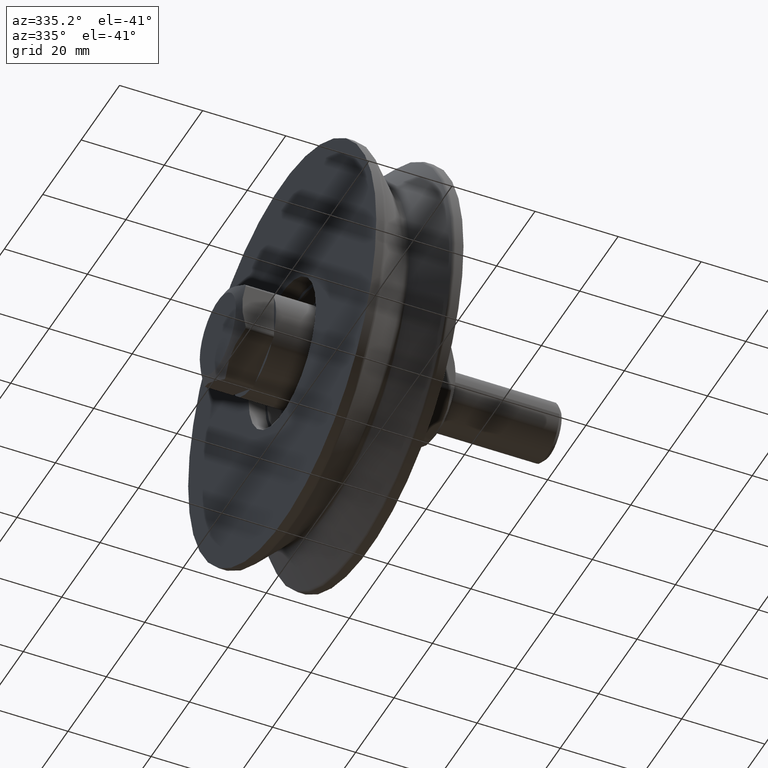
[diagram: clean part render]
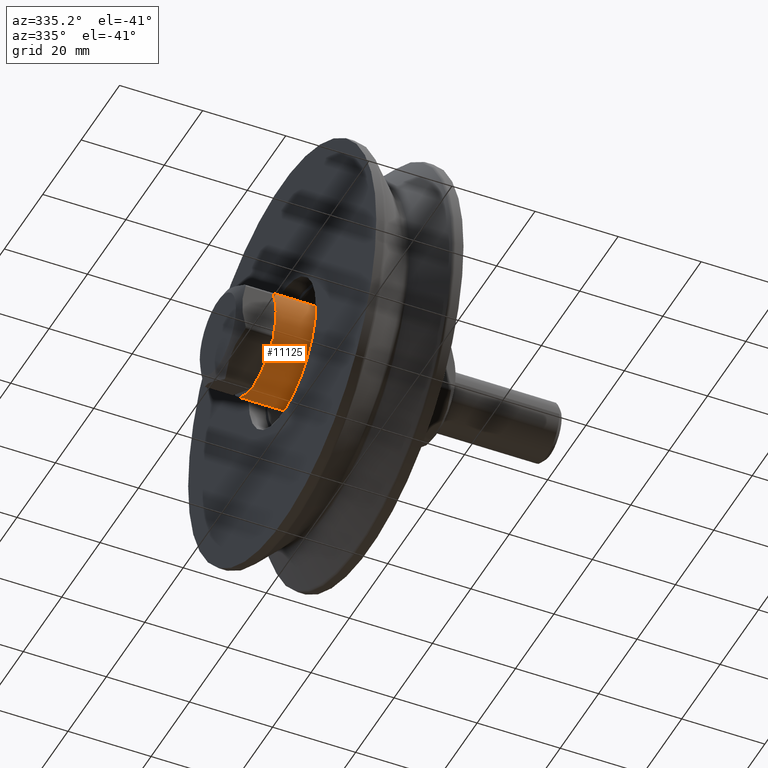
[diagram: same view with one face highlighted and labeled with its STEP entity id]
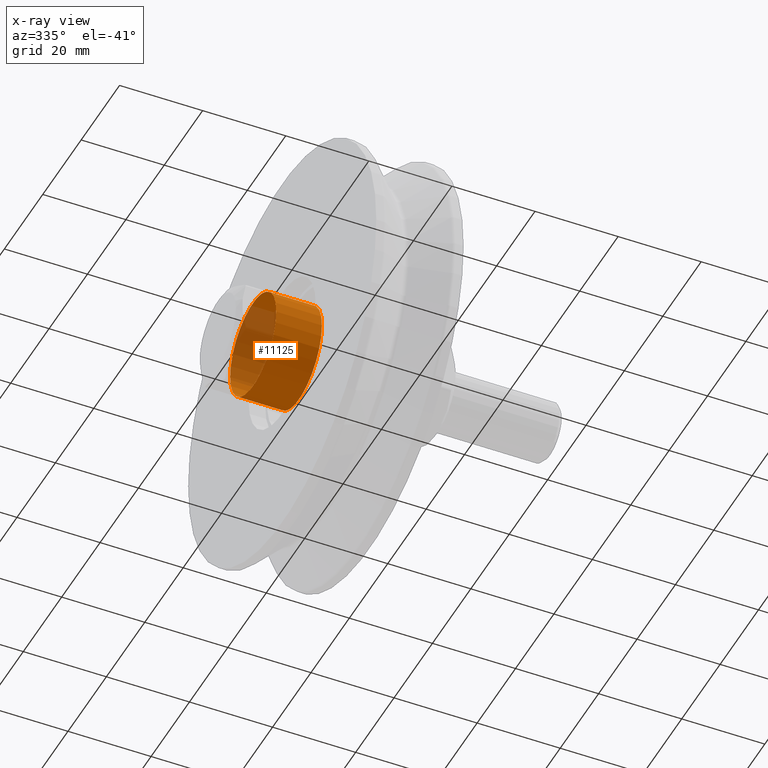
[diagram: x-ray of the same camera — body ghosted, the highlighted face saturated]
A machine part, auxiliary view. The second image highlights one B-rep face of the part: STEP entity #11125.
The next image is the same camera in x-ray: the body ghosted, the highlighted face saturated — about 30% of this face is hidden behind the body in this view.
In plain terms, the highlighted cylindrical surface (bore or boss wall) has radius 12 mm, axis along (-1, 0, 0).
Its self-contained STEP definition (entity closure, byte-faithful):
#40 = FACE_OUTER_BOUND ( 'NONE', #5791, .T. ) ;
#181 = CIRCLE ( 'NONE', #13660, 11.99999999999999822 ) ;
#1109 = ORIENTED_EDGE ( 'NONE', *, *, #13246, .T. ) ;
#1682 = CARTESIAN_POINT ( 'NONE',  ( 0.000000000000000000, 1.410593220986744572E-31, -1.301042606982605124E-15 ) ) ;
#1915 = VERTEX_POINT ( 'NONE', #10951 ) ;
#2662 = DIRECTION ( 'NONE',  ( -0.000000000000000000, 1.084202172485504187E-16, -1.000000000000000000 ) ) ;
#2762 = DIRECTION ( 'NONE',  ( 0.000000000000000000, 1.000000000000000000, 1.445602896647339410E-16 ) ) ;
#3478 = CIRCLE ( 'NONE', #3918, 12.00000000000000000 ) ;
#3918 = AXIS2_PLACEMENT_3D ( 'NONE', #1682, #2662, #7215 ) ;
#4638 = FACE_OUTER_BOUND ( 'NONE', #7384, .T. ) ;
#5427 = ORIENTED_EDGE ( 'NONE', *, *, #7097, .F. ) ;
#5607 = DIRECTION ( 'NONE',  ( 0.000000000000000000, 1.000000000000000000, 1.084202172485504311E-16 ) ) ;
#5791 = EDGE_LOOP ( 'NONE', ( #1109 ) ) ;
#6645 = CARTESIAN_POINT ( 'NONE',  ( 0.000000000000000000, 0.000000000000000000, 0.000000000000000000 ) ) ;
#7097 = EDGE_CURVE ( 'NONE', #9006, #9006, #3478, .T. ) ;
#7215 = DIRECTION ( 'NONE',  ( 0.000000000000000000, 1.000000000000000000, 1.084202172485504311E-16 ) ) ;
#7384 = EDGE_LOOP ( 'NONE', ( #5427 ) ) ;
#9006 = VERTEX_POINT ( 'NONE', #13072 ) ;
#9538 = DIRECTION ( 'NONE',  ( -0.000000000000000000, 1.084202172485504187E-16, -1.000000000000000000 ) ) ;
#10094 = DIRECTION ( 'NONE',  ( -0.000000000000000000, 1.084202172485504187E-16, -1.000000000000000000 ) ) ;
#10622 = AXIS2_PLACEMENT_3D ( 'NONE', #6645, #10094, #5607 ) ;
#10753 = CARTESIAN_POINT ( 'NONE',  ( 0.000000000000000000, -1.192622389734054286E-15, 10.99999999999999822 ) ) ;
#10951 = CARTESIAN_POINT ( 'NONE',  ( 0.000000000000000000, 11.99999999999999645, 11.00000000000000000 ) ) ;
#10973 = CYLINDRICAL_SURFACE ( 'NONE', #10622, 12.00000000000000000 ) ;
#11125 = ADVANCED_FACE ( 'NONE', ( #40, #4638 ), #10973, .T. ) ;
#13072 = CARTESIAN_POINT ( 'NONE',  ( 0.000000000000000000, 12.00000000000000000, 0.000000000000000000 ) ) ;
#13246 = EDGE_CURVE ( 'NONE', #1915, #1915, #181, .T. ) ;
#13660 = AXIS2_PLACEMENT_3D ( 'NONE', #10753, #9538, #2762 ) ;